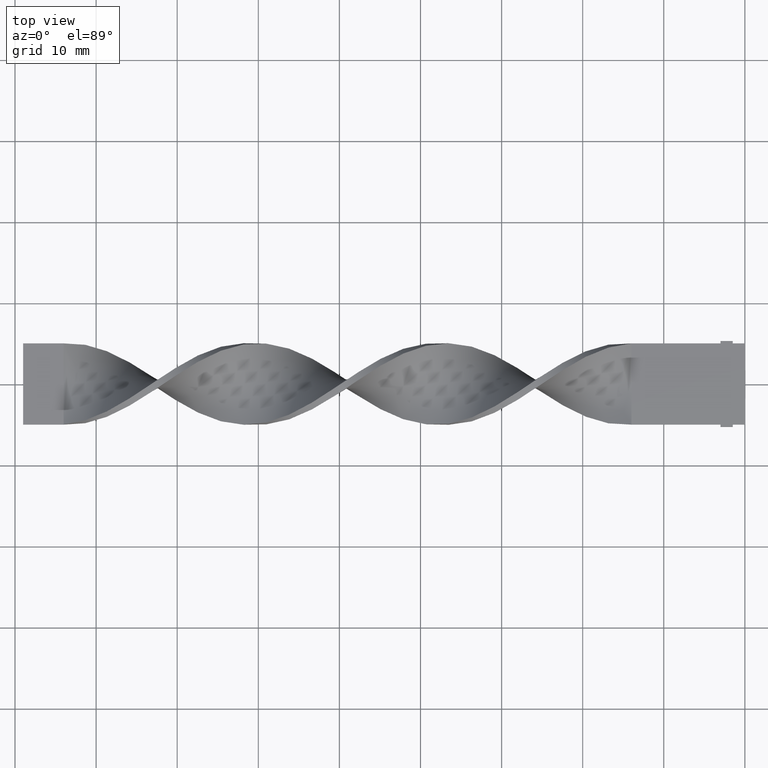
[diagram: clean part render]
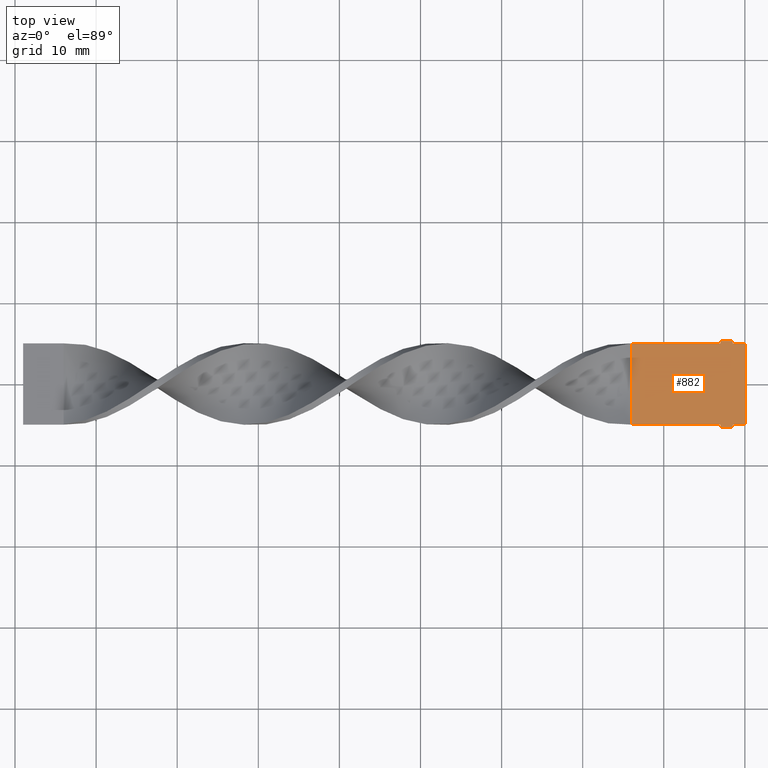
[diagram: same view with one face highlighted and labeled with its STEP entity id]
A machine part, top view. The second image highlights one B-rep face of the part: STEP entity #882.
In plain terms, the highlighted planar face has unit normal (0, 0, 1).
Its self-contained STEP definition (entity closure, byte-faithful):
#5 = LINE ( 'NONE', #118, #608 ) ;
#9 = ORIENTED_EDGE ( 'NONE', *, *, #1414, .T. ) ;
#17 = LINE ( 'NONE', #101, #413 ) ;
#18 = VECTOR ( 'NONE', #316, 1000.000000000000000 ) ;
#30 = LINE ( 'NONE', #1027, #1151 ) ;
#54 = CARTESIAN_POINT ( 'NONE',  ( -1.499999999999993561, -5.299999999999998934, 0.5000000000000000000 ) ) ;
#82 = VECTOR ( 'NONE', #962, 1000.000000000000000 ) ;
#87 = CARTESIAN_POINT ( 'NONE',  ( -1.499999999999994893, 5.299999999999998934, 0.5000000000000000000 ) ) ;
#90 = CARTESIAN_POINT ( 'NONE',  ( -2.999999999999994671, 4.999999999999999112, 0.5000000000000000000 ) ) ;
#93 = ORIENTED_EDGE ( 'NONE', *, *, #267, .T. ) ;
#101 = CARTESIAN_POINT ( 'NONE',  ( -2.999999999999994671, 5.299999999999998934, 0.5000000000000000000 ) ) ;
#106 = FACE_OUTER_BOUND ( 'NONE', #628, .T. ) ;
#118 = CARTESIAN_POINT ( 'NONE',  ( -1.224646799147352862E-15, 4.999999999999999112, 0.5000000000000000000 ) ) ;
#143 = VECTOR ( 'NONE', #1419, 1000.000000000000000 ) ;
#215 = EDGE_CURVE ( 'NONE', #595, #349, #5, .T. ) ;
#219 = DIRECTION ( 'NONE',  ( 1.734723475976807341E-16, -1.000000000000000000, 0.000000000000000000 ) ) ;
#233 = CARTESIAN_POINT ( 'NONE',  ( -13.99999999999999822, 4.999999999999997335, 0.5000000000000000000 ) ) ;
#246 = DIRECTION ( 'NONE',  ( -1.000000000000000000, 0.000000000000000000, 0.000000000000000000 ) ) ;
#267 = EDGE_CURVE ( 'NONE', #729, #1318, #1436, .T. ) ;
#310 = LINE ( 'NONE', #822, #530 ) ;
#316 = DIRECTION ( 'NONE',  ( -1.000000000000000000, 0.000000000000000000, 0.000000000000000000 ) ) ;
#330 = ORIENTED_EDGE ( 'NONE', *, *, #215, .T. ) ;
#348 = VERTEX_POINT ( 'NONE', #353 ) ;
#349 = VERTEX_POINT ( 'NONE', #778 ) ;
#353 = CARTESIAN_POINT ( 'NONE',  ( -2.999999999999993339, -4.999999999999999112, 0.5000000000000000000 ) ) ;
#369 = DIRECTION ( 'NONE',  ( -1.000000000000000000, -1.577021341797097067E-16, 0.000000000000000000 ) ) ;
#413 = VECTOR ( 'NONE', #423, 1000.000000000000000 ) ;
#417 = VECTOR ( 'NONE', #1435, 1000.000000000000000 ) ;
#420 = VERTEX_POINT ( 'NONE', #446 ) ;
#423 = DIRECTION ( 'NONE',  ( 0.000000000000000000, -1.000000000000000000, 0.000000000000000000 ) ) ;
#437 = CARTESIAN_POINT ( 'NONE',  ( -13.99999999999999822, 4.999999999999997335, 0.5000000000000000000 ) ) ;
#446 = CARTESIAN_POINT ( 'NONE',  ( -1.499999999999993561, -4.999999999999999112, 0.5000000000000000000 ) ) ;
#448 = LINE ( 'NONE', #1464, #18 ) ;
#455 = DIRECTION ( 'NONE',  ( 0.000000000000000000, 1.000000000000000000, 0.000000000000000000 ) ) ;
#457 = DIRECTION ( 'NONE',  ( 0.000000000000000000, -1.000000000000000000, 0.000000000000000000 ) ) ;
#466 = ORIENTED_EDGE ( 'NONE', *, *, #1522, .F. ) ;
#501 = VECTOR ( 'NONE', #219, 1000.000000000000000 ) ;
#517 = EDGE_CURVE ( 'NONE', #1446, #348, #1521, .T. ) ;
#530 = VECTOR ( 'NONE', #455, 1000.000000000000000 ) ;
#569 = CARTESIAN_POINT ( 'NONE',  ( -1.499999999999993561, -4.999999999999999112, 0.5000000000000000000 ) ) ;
#575 = VECTOR ( 'NONE', #457, 1000.000000000000000 ) ;
#595 = VERTEX_POINT ( 'NONE', #816 ) ;
#608 = VECTOR ( 'NONE', #246, 1000.000000000000000 ) ;
#628 = EDGE_LOOP ( 'NONE', ( #466, #1083, #330, #9, #948, #734, #93, #1325, #1073, #1370, #1594, #1143 ) ) ;
#649 = EDGE_CURVE ( 'NONE', #420, #1468, #685, .T. ) ;
#685 = LINE ( 'NONE', #569, #575 ) ;
#698 = CARTESIAN_POINT ( 'NONE',  ( 1.925929944387235853E-31, -4.999999999999999112, 0.5000000000000000000 ) ) ;
#708 = AXIS2_PLACEMENT_3D ( 'NONE', #1232, #984, #1120 ) ;
#729 = VERTEX_POINT ( 'NONE', #90 ) ;
#734 = ORIENTED_EDGE ( 'NONE', *, *, #1117, .T. ) ;
#778 = CARTESIAN_POINT ( 'NONE',  ( -1.499999999999994893, 4.999999999999999112, 0.5000000000000000000 ) ) ;
#783 = DIRECTION ( 'NONE',  ( -1.000000000000000000, -1.577021341797097067E-16, 0.000000000000000000 ) ) ;
#789 = CARTESIAN_POINT ( 'NONE',  ( -2.999999999999994671, 4.999999999999999112, 0.5000000000000000000 ) ) ;
#816 = CARTESIAN_POINT ( 'NONE',  ( -1.224646799147352862E-15, 4.999999999999999112, 0.5000000000000000000 ) ) ;
#819 = VERTEX_POINT ( 'NONE', #1132 ) ;
#822 = CARTESIAN_POINT ( 'NONE',  ( -1.499999999999994893, 4.999999999999999112, 0.5000000000000000000 ) ) ;
#860 = EDGE_CURVE ( 'NONE', #1318, #883, #1480, .T. ) ;
#882 = ADVANCED_FACE ( 'NONE', ( #106 ), #1223, .T. ) ;
#883 = VERTEX_POINT ( 'NONE', #965 ) ;
#924 = EDGE_CURVE ( 'NONE', #348, #883, #30, .T. ) ;
#942 = CARTESIAN_POINT ( 'NONE',  ( -2.999999999999993339, -5.299999999999998934, 0.5000000000000000000 ) ) ;
#948 = ORIENTED_EDGE ( 'NONE', *, *, #1167, .T. ) ;
#962 = DIRECTION ( 'NONE',  ( 0.000000000000000000, 1.000000000000000000, 0.000000000000000000 ) ) ;
#965 = CARTESIAN_POINT ( 'NONE',  ( -13.99999999999999645, -5.000000000000000888, 0.5000000000000000000 ) ) ;
#983 = VECTOR ( 'NONE', #1177, 1000.000000000000000 ) ;
#984 = DIRECTION ( 'NONE',  ( 0.000000000000000000, 0.000000000000000000, 1.000000000000000000 ) ) ;
#1027 = CARTESIAN_POINT ( 'NONE',  ( -2.999999999999993339, -4.999999999999999112, 0.5000000000000000000 ) ) ;
#1058 = LINE ( 'NONE', #54, #417 ) ;
#1073 = ORIENTED_EDGE ( 'NONE', *, *, #924, .F. ) ;
#1083 = ORIENTED_EDGE ( 'NONE', *, *, #1449, .T. ) ;
#1087 = CARTESIAN_POINT ( 'NONE',  ( -2.999999999999994671, 5.299999999999998934, 0.5000000000000000000 ) ) ;
#1117 = EDGE_CURVE ( 'NONE', #1461, #729, #17, .T. ) ;
#1120 = DIRECTION ( 'NONE',  ( 1.000000000000000000, 0.000000000000000000, -0.000000000000000000 ) ) ;
#1132 = CARTESIAN_POINT ( 'NONE',  ( 1.925929944387235853E-31, -4.999999999999999112, 0.5000000000000000000 ) ) ;
#1143 = ORIENTED_EDGE ( 'NONE', *, *, #649, .F. ) ;
#1151 = VECTOR ( 'NONE', #369, 1000.000000000000000 ) ;
#1164 = LINE ( 'NONE', #1544, #143 ) ;
#1167 = EDGE_CURVE ( 'NONE', #1485, #1461, #1164, .T. ) ;
#1177 = DIRECTION ( 'NONE',  ( -1.224646799147353207E-16, 1.000000000000000000, 0.000000000000000000 ) ) ;
#1207 = CARTESIAN_POINT ( 'NONE',  ( -1.499999999999993561, -5.299999999999998934, 0.5000000000000000000 ) ) ;
#1223 = PLANE ( 'NONE',  #708 ) ;
#1232 = CARTESIAN_POINT ( 'NONE',  ( 0.000000000000000000, 0.000000000000000000, 0.5000000000000000000 ) ) ;
#1238 = VECTOR ( 'NONE', #783, 1000.000000000000000 ) ;
#1318 = VERTEX_POINT ( 'NONE', #437 ) ;
#1325 = ORIENTED_EDGE ( 'NONE', *, *, #860, .T. ) ;
#1370 = ORIENTED_EDGE ( 'NONE', *, *, #517, .F. ) ;
#1414 = EDGE_CURVE ( 'NONE', #349, #1485, #310, .T. ) ;
#1419 = DIRECTION ( 'NONE',  ( -1.000000000000000000, 0.000000000000000000, 0.000000000000000000 ) ) ;
#1435 = DIRECTION ( 'NONE',  ( -1.000000000000000000, 0.000000000000000000, 0.000000000000000000 ) ) ;
#1436 = LINE ( 'NONE', #789, #1238 ) ;
#1446 = VERTEX_POINT ( 'NONE', #942 ) ;
#1449 = EDGE_CURVE ( 'NONE', #819, #595, #1560, .T. ) ;
#1461 = VERTEX_POINT ( 'NONE', #1087 ) ;
#1464 = CARTESIAN_POINT ( 'NONE',  ( 1.925929944387235853E-31, -4.999999999999999112, 0.5000000000000000000 ) ) ;
#1468 = VERTEX_POINT ( 'NONE', #1207 ) ;
#1480 = LINE ( 'NONE', #233, #501 ) ;
#1485 = VERTEX_POINT ( 'NONE', #87 ) ;
#1521 = LINE ( 'NONE', #1537, #82 ) ;
#1522 = EDGE_CURVE ( 'NONE', #819, #420, #448, .T. ) ;
#1537 = CARTESIAN_POINT ( 'NONE',  ( -2.999999999999993339, -5.299999999999998934, 0.5000000000000000000 ) ) ;
#1544 = CARTESIAN_POINT ( 'NONE',  ( -1.499999999999994893, 5.299999999999998934, 0.5000000000000000000 ) ) ;
#1560 = LINE ( 'NONE', #698, #983 ) ;
#1582 = EDGE_CURVE ( 'NONE', #1468, #1446, #1058, .T. ) ;
#1594 = ORIENTED_EDGE ( 'NONE', *, *, #1582, .F. ) ;